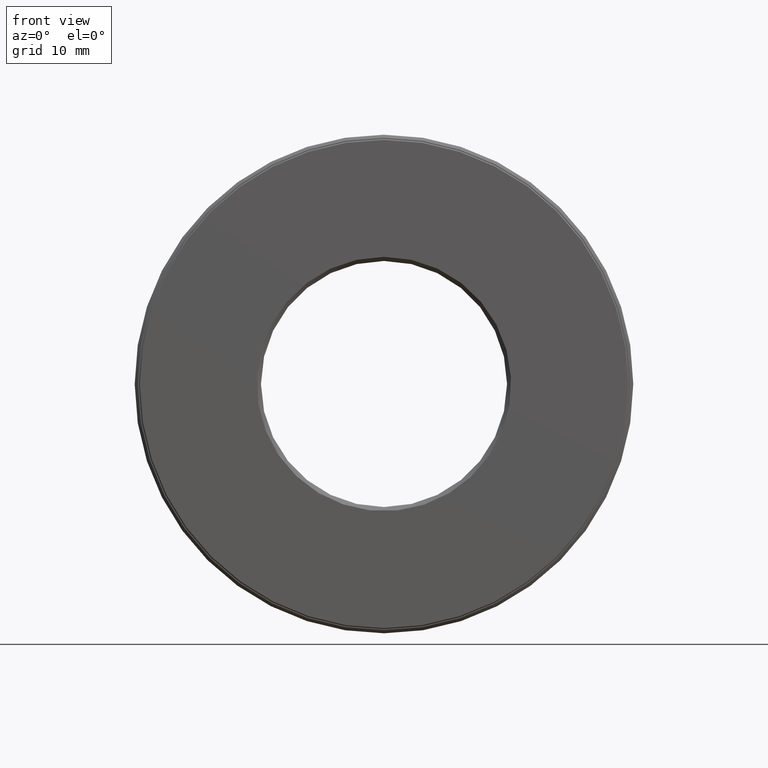
[diagram: clean part render]
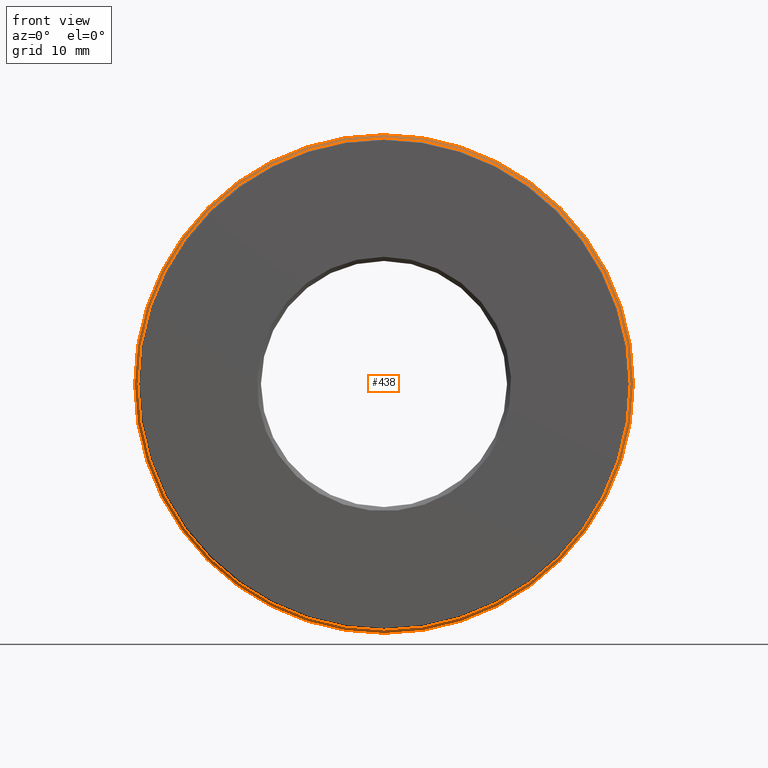
[diagram: same view with one face highlighted and labeled with its STEP entity id]
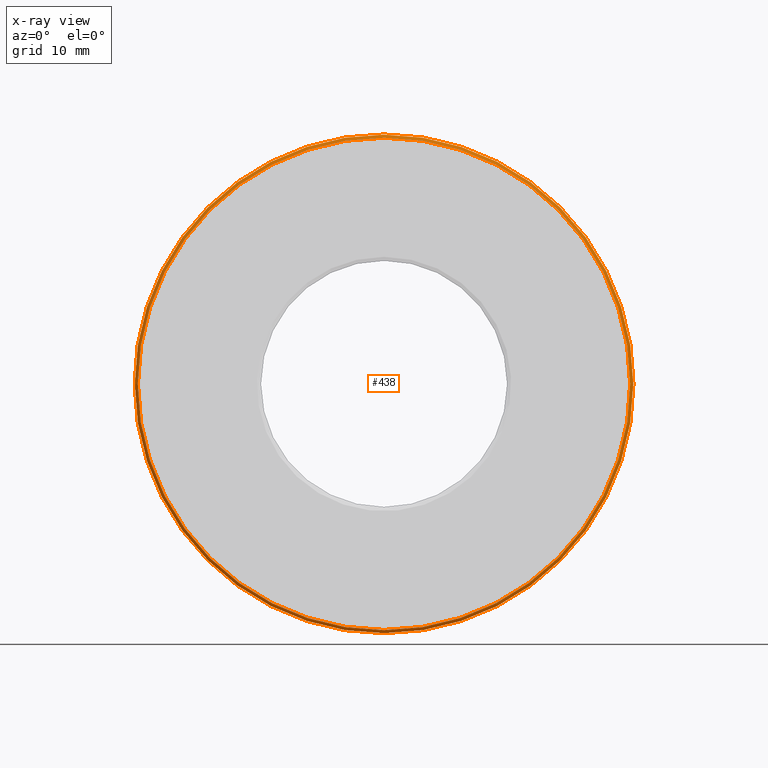
[diagram: x-ray of the same camera — body ghosted, the highlighted face saturated]
A machine part, front view. The second image highlights one B-rep face of the part: STEP entity #438.
The next image is the same camera in x-ray: the body ghosted, the highlighted face saturated — about 0% of this face is hidden behind the body in this view.
In plain terms, the highlighted conical surface has half-angle 45 deg.
Its self-contained STEP definition (entity closure, byte-faithful):
#8 = CIRCLE ( 'NONE', #173, 1.203125000000000000 ) ;
#28 = FACE_BOUND ( 'NONE', #250, .T. ) ;
#54 = EDGE_LOOP ( 'NONE', ( #593 ) ) ;
#65 = VERTEX_POINT ( 'NONE', #168 ) ;
#96 = CARTESIAN_POINT ( 'NONE',  ( 0.0000000000000000000, -6.829619984160658000E-017, 0.0000000000000000000 ) ) ;
#113 = EDGE_CURVE ( 'NONE', #510, #510, #8, .T. ) ;
#118 = CONICAL_SURFACE ( 'NONE', #317, 1.188125000000000100, 0.7853981633974460600 ) ;
#161 = FACE_OUTER_BOUND ( 'NONE', #54, .T. ) ;
#168 = CARTESIAN_POINT ( 'NONE',  ( 0.0000000000000000000, -6.829619984160658000E-017, 1.188125000000000100 ) ) ;
#173 = AXIS2_PLACEMENT_3D ( 'NONE', #182, #303, #503 ) ;
#182 = CARTESIAN_POINT ( 'NONE',  ( 0.0000000000000000000, 0.01499999999999997700, 0.0000000000000000000 ) ) ;
#189 = DIRECTION ( 'NONE',  ( -0.0000000000000000000, 1.000000000000000000, -0.0000000000000000000 ) ) ;
#250 = EDGE_LOOP ( 'NONE', ( #538 ) ) ;
#303 = DIRECTION ( 'NONE',  ( -0.0000000000000000000, 1.000000000000000000, -0.0000000000000000000 ) ) ;
#317 = AXIS2_PLACEMENT_3D ( 'NONE', #96, #189, #418 ) ;
#331 = CARTESIAN_POINT ( 'NONE',  ( 0.0000000000000000000, 0.01499999999999997700, 1.203125000000000000 ) ) ;
#408 = DIRECTION ( 'NONE',  ( 0.0000000000000000000, 0.0000000000000000000, 1.000000000000000000 ) ) ;
#415 = EDGE_CURVE ( 'NONE', #65, #65, #570, .T. ) ;
#418 = DIRECTION ( 'NONE',  ( 0.0000000000000000000, 0.0000000000000000000, 1.000000000000000000 ) ) ;
#438 = ADVANCED_FACE ( 'NONE', ( #161, #28 ), #118, .T. ) ;
#503 = DIRECTION ( 'NONE',  ( 0.0000000000000000000, 0.0000000000000000000, 1.000000000000000000 ) ) ;
#510 = VERTEX_POINT ( 'NONE', #331 ) ;
#517 = AXIS2_PLACEMENT_3D ( 'NONE', #557, #602, #408 ) ;
#538 = ORIENTED_EDGE ( 'NONE', *, *, #415, .T. ) ;
#557 = CARTESIAN_POINT ( 'NONE',  ( 0.0000000000000000000, -6.829619984160658000E-017, 0.0000000000000000000 ) ) ;
#570 = CIRCLE ( 'NONE', #517, 1.188125000000000100 ) ;
#593 = ORIENTED_EDGE ( 'NONE', *, *, #113, .F. ) ;
#602 = DIRECTION ( 'NONE',  ( -0.0000000000000000000, 1.000000000000000000, -0.0000000000000000000 ) ) ;